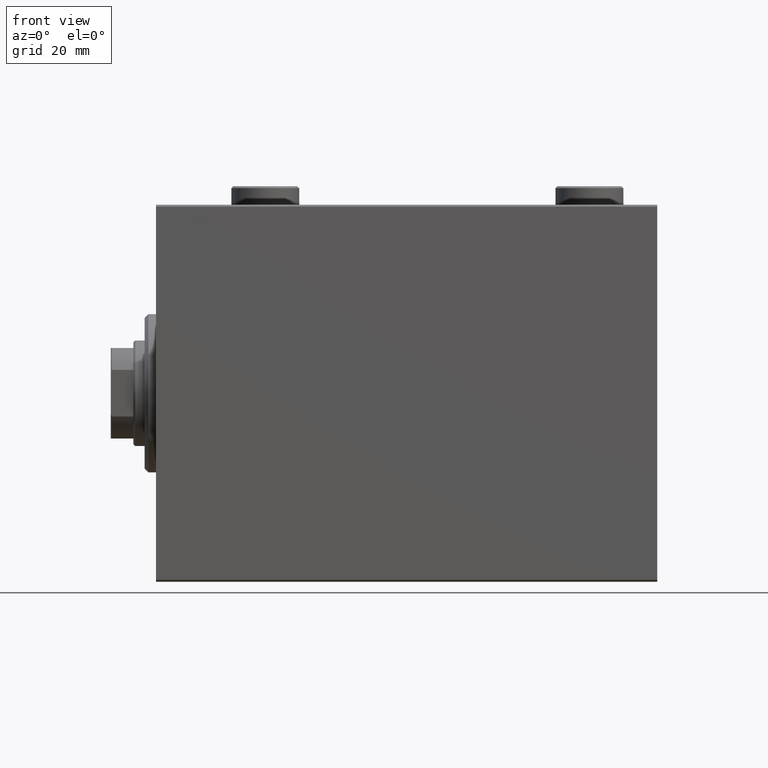
[diagram: clean part render]
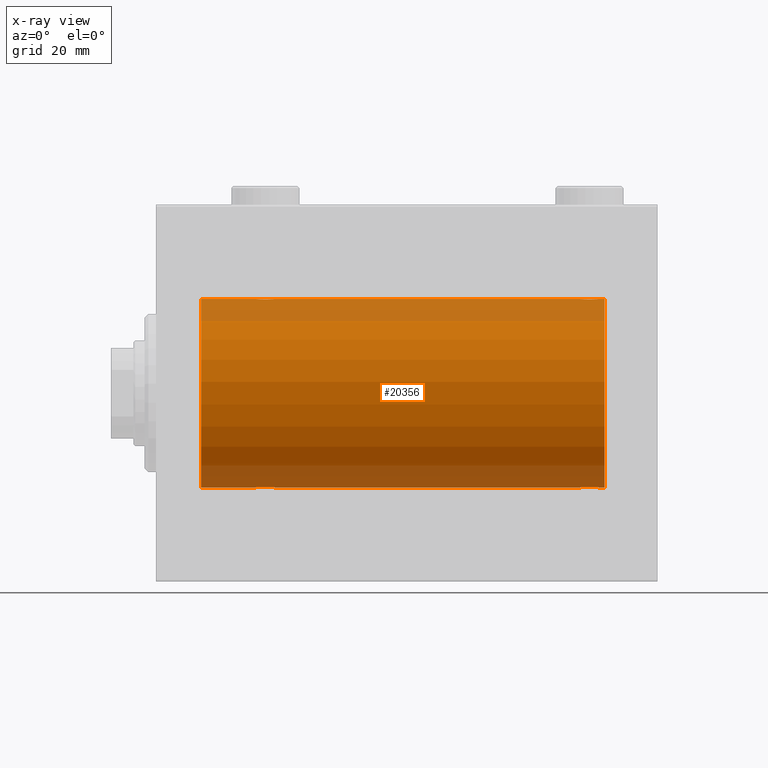
[diagram: x-ray — body ghosted, one internal face saturated and labeled with its STEP entity id]
A machine part, front view, then the same camera in x-ray: the body is ghosted and one INTERNAL B-rep face — a face not visible from any outside direction — is saturated and labeled: STEP entity #20356.
In plain terms, the highlighted cylindrical surface (partial cylindrical patch) has radius 25 mm, axis along (-1, -0, -0).
Its self-contained STEP definition (entity closure, byte-faithful):
#103 = CARTESIAN_POINT ( 'NONE',  ( 117.4841784005765959, -0.3254210271412233957, -24.99840249400844883 ) ) ;
#544 = CARTESIAN_POINT ( 'NONE',  ( 31.49999999999998579, -0.3305063766663716707, 25.00000000000000000 ) ) ;
#751 = CARTESIAN_POINT ( 'NONE',  ( 31.24760251019550950, -1.106703319666878071, -24.97594585958023572 ) ) ;
#789 = CARTESIAN_POINT ( 'NONE',  ( 114.8367641036145557, -2.500125740978209610, -24.87467329022544149 ) ) ;
#1002 = CARTESIAN_POINT ( 'NONE',  ( 115.8078834240580619, -2.371528299825764297, -24.88734287464370709 ) ) ;
#1161 = CARTESIAN_POINT ( 'NONE',  ( 116.8818595414864916, -1.653834020452950915, 24.94550385189584318 ) ) ;
#1399 = CARTESIAN_POINT ( 'NONE',  ( 115.3259657003946330, -2.484007091859779859, 24.87630842367763151 ) ) ;
#1419 = DIRECTION ( 'NONE',  ( -1.000000000000000000, -0.000000000000000000, -0.000000000000000000 ) ) ;
#1562 = CARTESIAN_POINT ( 'NONE',  ( 29.80435660916301543, -2.372734907014179662, 24.88722742718433167 ) ) ;
#1627 = CARTESIAN_POINT ( 'NONE',  ( 112.5000000000000284, -0.1631750940176233677, 25.00000000000000711 ) ) ;
#1875 = ORIENTED_EDGE ( 'NONE', *, *, #18069, .T. ) ;
#2432 = CARTESIAN_POINT ( 'NONE',  ( 119.0000000000000000, 0.000000000000000000, 25.00000000000000000 ) ) ;
#2623 = CARTESIAN_POINT ( 'NONE',  ( 26.50000000000000355, -1.940558383798427991E-23, 25.00000000000000000 ) ) ;
#2659 = DIRECTION ( 'NONE',  ( 0.000000000000000000, 0.000000000000000000, 1.000000000000000000 ) ) ;
#3008 = EDGE_CURVE ( 'NONE', #14849, #11965, #22912, .T. ) ;
#3521 = CARTESIAN_POINT ( 'NONE',  ( 30.25383195424502958, -2.169003991399867104, -24.90589728951138326 ) ) ;
#3798 = CARTESIAN_POINT ( 'NONE',  ( 116.2538319542450580, -2.169003991399883091, -24.90589728951138326 ) ) ;
#3987 = CARTESIAN_POINT ( 'NONE',  ( 119.0000000000000000, 0.000000000000000000, 25.00000000000000000 ) ) ;
#4018 = CARTESIAN_POINT ( 'NONE',  ( 116.5253618224308099, -1.987446652080275156, -24.92104239223420592 ) ) ;
#4204 = CARTESIAN_POINT ( 'NONE',  ( 29.64904390169096970, -2.419770561643905804, -24.88263927071751169 ) ) ;
#4471 = CARTESIAN_POINT ( 'NONE',  ( 115.1670649517806169, -2.499872792855096559, -24.87469871246082320 ) ) ;
#4632 = CARTESIAN_POINT ( 'NONE',  ( 116.2508402392405600, -2.170728182476736379, 24.90574631553725027 ) ) ;
#4689 = CARTESIAN_POINT ( 'NONE',  ( 112.8317235850604163, -1.255214705003200537, -24.96884293994577675 ) ) ;
#5078 = VECTOR ( 'NONE', #10938, 1000.000000000000000 ) ;
#5316 = CARTESIAN_POINT ( 'NONE',  ( 112.5158215994234325, -0.3254210271412262823, 24.99840249400844527 ) ) ;
#5472 = CARTESIAN_POINT ( 'NONE',  ( 26.62784030591392792, -0.8058335233485494076, 24.98746277938382576 ) ) ;
#5523 = EDGE_CURVE ( 'NONE', #15996, #18544, #7297, .T. ) ;
#5541 = CARTESIAN_POINT ( 'NONE',  ( 113.4746381775692328, -1.987446652080276488, 24.92104239223420947 ) ) ;
#5698 = CARTESIAN_POINT ( 'NONE',  ( 28.35095609830903385, -2.419770561643914686, 24.88263927071751169 ) ) ;
#6587 = DIRECTION ( 'NONE',  ( -1.000000000000000000, 0.000000000000000000, 0.000000000000000000 ) ) ;
#6698 = CARTESIAN_POINT ( 'NONE',  ( 11.99999999999999645, 0.000000000000000000, 0.000000000000000000 ) ) ;
#6925 = CARTESIAN_POINT ( 'NONE',  ( 119.0000000000000000, 3.061616997868383043E-15, -25.00000000000000000 ) ) ;
#7212 = CARTESIAN_POINT ( 'NONE',  ( 29.80788342405805835, -2.371528299825741648, -24.88734287464370709 ) ) ;
#7297 = CIRCLE ( 'NONE', #19851, 25.00000000000000000 ) ;
#7451 = CARTESIAN_POINT ( 'NONE',  ( 27.89276154161591137, -2.247417070759893498, -24.89885693081945917 ) ) ;
#7487 = CARTESIAN_POINT ( 'NONE',  ( 119.0000000000000000, 3.061616997868383043E-15, -25.00000000000000000 ) ) ;
#8107 = CARTESIAN_POINT ( 'NONE',  ( 112.5000000000000000, -1.940242839436339586E-23, 25.00000000000000000 ) ) ;
#8434 = CARTESIAN_POINT ( 'NONE',  ( 119.0000000000000000, 3.061616997868383043E-15, -25.00000000000000000 ) ) ;
#8490 = CARTESIAN_POINT ( 'NONE',  ( 27.34616663850662377, -1.881857718844722527, 24.92933960374833902 ) ) ;
#8498 = CARTESIAN_POINT ( 'NONE',  ( 112.5000000000000000, -1.940242839436339586E-23, 25.00000000000000000 ) ) ;
#8715 = CARTESIAN_POINT ( 'NONE',  ( 26.51582159942343253, -0.3254210271412228961, 24.99840249400844527 ) ) ;
#9014 = CARTESIAN_POINT ( 'NONE',  ( 113.1158761721352732, -1.651251241585114826, 24.94567559498347720 ) ) ;
#9395 = CARTESIAN_POINT ( 'NONE',  ( 27.88963203491136156, -2.245863995402906266, 24.89899750494197050 ) ) ;
#9444 = VECTOR ( 'NONE', #17946, 1000.000000000000000 ) ;
#9534 = EDGE_CURVE ( 'NONE', #31065, #9894, #25041, .T. ) ;
#9585 = CARTESIAN_POINT ( 'NONE',  ( 117.4201490922092859, -0.6480119923854253949, -24.99212088949390775 ) ) ;
#9616 = ORIENTED_EDGE ( 'NONE', *, *, #3008, .T. ) ;
#9776 = VERTEX_POINT ( 'NONE', #42539 ) ;
#9823 = EDGE_CURVE ( 'NONE', #18962, #9894, #33281, .T. ) ;
#9894 = VERTEX_POINT ( 'NONE', #27269 ) ;
#9937 = DIRECTION ( 'NONE',  ( -1.000000000000000000, -0.000000000000000000, -0.000000000000000000 ) ) ;
#10092 = CARTESIAN_POINT ( 'NONE',  ( 117.5000000000000142, 3.061616978466108082E-15, -25.00000000000000000 ) ) ;
#10217 = ORIENTED_EDGE ( 'NONE', *, *, #9534, .F. ) ;
#10219 = CARTESIAN_POINT ( 'NONE',  ( 31.50000000000000000, -0.1631750940176180942, -25.00000000000001066 ) ) ;
#10317 = EDGE_CURVE ( 'NONE', #41528, #9776, #22139, .T. ) ;
#10380 = VERTEX_POINT ( 'NONE', #7487 ) ;
#10676 = CARTESIAN_POINT ( 'NONE',  ( 28.67403429960540606, -2.484007091859761207, -24.87630842367763506 ) ) ;
#10781 = CARTESIAN_POINT ( 'NONE',  ( 119.0000000000000000, 3.061616997868383043E-15, -25.00000000000000000 ) ) ;
#10905 = CARTESIAN_POINT ( 'NONE',  ( 30.11036796508864910, -2.245863995402895164, -24.89899750494197406 ) ) ;
#10938 = DIRECTION ( 'NONE',  ( -1.000000000000000000, -0.000000000000000000, -0.000000000000000000 ) ) ;
#11354 = CARTESIAN_POINT ( 'NONE',  ( 26.83172358506043054, -1.255214705003178555, -24.96884293994578030 ) ) ;
#11559 = CARTESIAN_POINT ( 'NONE',  ( 117.5000000000000142, 3.101442856047762335E-15, 25.00000000000000000 ) ) ;
#11894 = DIRECTION ( 'NONE',  ( -1.000000000000000000, -0.000000000000000000, -0.000000000000000000 ) ) ;
#11965 = VERTEX_POINT ( 'NONE', #36256 ) ;
#12172 = CARTESIAN_POINT ( 'NONE',  ( 31.24606379094066355, -1.109818057797419710, 24.97580694515541921 ) ) ;
#12241 = CARTESIAN_POINT ( 'NONE',  ( 113.3461666385066735, -1.881857718844731187, 24.92933960374834257 ) ) ;
#12563 = EDGE_CURVE ( 'NONE', #32793, #21113, #43044, .T. ) ;
#13233 = CARTESIAN_POINT ( 'NONE',  ( 31.50000000000000000, 3.061616978460191625E-15, -25.00000000000000000 ) ) ;
#13881 = VECTOR ( 'NONE', #1419, 1000.000000000000000 ) ;
#13937 = ORIENTED_EDGE ( 'NONE', *, *, #10317, .T. ) ;
#14135 = CARTESIAN_POINT ( 'NONE',  ( 27.01461966282905180, -1.528152964861308138, -24.95362559291378801 ) ) ;
#14171 = CARTESIAN_POINT ( 'NONE',  ( 114.6740342996053670, -2.484007091859777638, -24.87630842367762796 ) ) ;
#14633 = CARTESIAN_POINT ( 'NONE',  ( 113.1181404585135652, -1.653834020452952469, -24.94550385189584318 ) ) ;
#14687 = LINE ( 'NONE', #8434, #24721 ) ;
#14710 = LINE ( 'NONE', #10781, #9444 ) ;
#14849 = VERTEX_POINT ( 'NONE', #2623 ) ;
#15080 = CARTESIAN_POINT ( 'NONE',  ( 113.7491597607594542, -2.170728182476735491, -24.90574631553725027 ) ) ;
#15243 = CARTESIAN_POINT ( 'NONE',  ( 112.6278403059138924, -0.8058335233485547366, 24.98746277938382221 ) ) ;
#15410 = CARTESIAN_POINT ( 'NONE',  ( 30.65121133559112820, -1.884161199660621344, 24.92916496727982434 ) ) ;
#15480 = CARTESIAN_POINT ( 'NONE',  ( 112.5798509077907141, -0.6480119923854293917, 24.99212088949391131 ) ) ;
#15635 = CARTESIAN_POINT ( 'NONE',  ( 30.25084023924055288, -2.170728182476724832, 24.90574631553725027 ) ) ;
#15672 = ORIENTED_EDGE ( 'NONE', *, *, #5523, .T. ) ;
#15703 = CARTESIAN_POINT ( 'NONE',  ( 115.8043566091630368, -2.372734907014189876, 24.88722742718433523 ) ) ;
#15723 = LINE ( 'NONE', #43708, #13881 ) ;
#15996 = VERTEX_POINT ( 'NONE', #29323 ) ;
#16093 = CARTESIAN_POINT ( 'NONE',  ( 26.50000000000000711, -0.1631750940176210085, 25.00000000000000355 ) ) ;
#16743 = ORIENTED_EDGE ( 'NONE', *, *, #27551, .F. ) ;
#17079 = DIRECTION ( 'NONE',  ( -1.000000000000000000, 0.000000000000000000, 0.000000000000000000 ) ) ;
#17610 = CARTESIAN_POINT ( 'NONE',  ( 26.75393620905933290, -1.109818057797416158, -24.97580694515542277 ) ) ;
#17835 = CARTESIAN_POINT ( 'NONE',  ( 26.50000000000000355, -4.113702575029848227E-15, -25.00000000000000000 ) ) ;
#17873 = CARTESIAN_POINT ( 'NONE',  ( 113.0146196628290340, -1.528152964861329899, -24.95362559291378091 ) ) ;
#17946 = DIRECTION ( 'NONE',  ( -1.000000000000000000, -0.000000000000000000, -0.000000000000000000 ) ) ;
#18069 = EDGE_CURVE ( 'NONE', #21113, #15996, #24491, .T. ) ;
#18544 = VERTEX_POINT ( 'NONE', #26804 ) ;
#18779 = CARTESIAN_POINT ( 'NONE',  ( 116.6538333614933975, -1.881857718844729188, -24.92933960374833546 ) ) ;
#18962 = VERTEX_POINT ( 'NONE', #8498 ) ;
#19182 = CARTESIAN_POINT ( 'NONE',  ( 112.8298870971907206, -1.252049606094352230, 24.96900299967626324 ) ) ;
#19338 = CARTESIAN_POINT ( 'NONE',  ( 27.74616804575497042, -2.169003991399875098, 24.90589728951138326 ) ) ;
#19401 = CARTESIAN_POINT ( 'NONE',  ( 113.8896320349113864, -2.245863995402917812, 24.89899750494197050 ) ) ;
#19564 = CARTESIAN_POINT ( 'NONE',  ( 26.82988709719076326, -1.252049606094339795, 24.96900299967627745 ) ) ;
#19851 = AXIS2_PLACEMENT_3D ( 'NONE', #6698, #17079, #27506 ) ;
#20021 = CARTESIAN_POINT ( 'NONE',  ( 30.10723845838410284, -2.247417070759901936, 24.89885693081946272 ) ) ;
#20356 = ADVANCED_FACE ( 'NONE', ( #34991 ), #27390, .F. ) ;
#20851 = CARTESIAN_POINT ( 'NONE',  ( 27.34878866440888245, -1.884161199660614017, -24.92916496727982434 ) ) ;
#20895 = CARTESIAN_POINT ( 'NONE',  ( 119.0000000000000000, 0.000000000000000000, 0.000000000000000000 ) ) ;
#21113 = VERTEX_POINT ( 'NONE', #42165 ) ;
#21119 = CARTESIAN_POINT ( 'NONE',  ( 117.5000000000000142, 3.061616978466108082E-15, -25.00000000000000000 ) ) ;
#21318 = CARTESIAN_POINT ( 'NONE',  ( 28.83676410361457343, -2.500125740978191846, -24.87467329022545925 ) ) ;
#21584 = CARTESIAN_POINT ( 'NONE',  ( 116.9874981583439535, -1.525407911884367307, -24.95379469572361586 ) ) ;
#21769 = CARTESIAN_POINT ( 'NONE',  ( 27.47743225659810307, -1.989585286700244149, -24.92087098724765681 ) ) ;
#22139 = B_SPLINE_CURVE_WITH_KNOTS ( 'NONE', 3,
 ( #21119, #31774, #103, #9585, #23676, #35453, #32674, #21584, #25499, #18779, #4018, #3798, #28984, #1002, #42842, #42601, #4471, #789, #14171, #36355, #39584, #25731, #15080, #28300, #25273, #14633, #17873, #4689, #28768, #25050, #43058, #36134 ),
 .UNSPECIFIED., .F., .F.,
 ( 4, 2, 2, 2, 2, 2, 2, 2, 2, 2, 2, 2, 2, 2, 2, 4 ),
 ( 0.007821024441662317167, 0.008309723826317923570, 0.008798423210973531708, 0.009287122595629138111, 0.009775821980284744514, 0.01026452136494035092, 0.01075322074959595905, 0.01124192013425156546, 0.01173061951890717186, 0.01221931890356278000, 0.01270801828821838640, 0.01319671767287399280, 0.01368541705752960094, 0.01417411644218520735, 0.01466281582684081375, 0.01564021459615204390 ),
 .UNSPECIFIED. ) ;
#22743 = AXIS2_PLACEMENT_3D ( 'NONE', #44496, #6587, #2659 ) ;
#22893 = CARTESIAN_POINT ( 'NONE',  ( 112.7523974898045083, -1.106703319666893393, 24.97594585958023217 ) ) ;
#22912 = B_SPLINE_CURVE_WITH_KNOTS ( 'NONE', 3,
 ( #40142, #16093, #8715, #36919, #5472, #40603, #19564, #37357, #30227, #8490, #26519, #19338, #9395, #44524, #5698, #40368, #44307, #23492, #36679, #33449, #1562, #20021, #15635, #37586, #15410, #29545, #43623, #29766, #12172, #26287, #544, #39349 ),
 .UNSPECIFIED., .F., .F.,
 ( 4, 2, 2, 2, 2, 2, 2, 2, 2, 2, 2, 2, 2, 2, 2, 4 ),
 ( 0.007821024441662254717, 0.008309723826317859385, 0.008798423210973464054, 0.009287122595629070457, 0.009775821980284676860, 0.01026452136494028153, 0.01075322074959588620, 0.01124192013425149260, 0.01173061951890709900, 0.01221931890356270367, 0.01270801828821830834, 0.01319671767287391301, 0.01368541705752951768, 0.01417411644218512408, 0.01466281582684072701, 0.01564021459615193982 ),
 .UNSPECIFIED. ) ;
#23112 = CARTESIAN_POINT ( 'NONE',  ( 115.1632358963854585, -2.500125740978211386, 24.87467329022544860 ) ) ;
#23206 = ORIENTED_EDGE ( 'NONE', *, *, #34665, .T. ) ;
#23492 = CARTESIAN_POINT ( 'NONE',  ( 29.16323589638543368, -2.500125740978201616, 24.87467329022545215 ) ) ;
#23676 = CARTESIAN_POINT ( 'NONE',  ( 117.3721596940861076, -0.8058335233485520721, -24.98746277938383287 ) ) ;
#24156 = ORIENTED_EDGE ( 'NONE', *, *, #25785, .T. ) ;
#24491 = LINE ( 'NONE', #6925, #43102 ) ;
#24721 = VECTOR ( 'NONE', #11894, 1000.000000000000000 ) ;
#24772 = CARTESIAN_POINT ( 'NONE',  ( 31.37215969408607563, -0.8058335233485418581, -24.98746277938382931 ) ) ;
#25041 = LINE ( 'NONE', #28977, #5078 ) ;
#25050 = CARTESIAN_POINT ( 'NONE',  ( 112.5665064476025350, -0.6588655613946048373, -24.99312727339970053 ) ) ;
#25273 = CARTESIAN_POINT ( 'NONE',  ( 113.3487886644089286, -1.884161199660632224, -24.92916496727982789 ) ) ;
#25499 = CARTESIAN_POINT ( 'NONE',  ( 116.8841238278646983, -1.651251241585112384, -24.94567559498348430 ) ) ;
#25731 = CARTESIAN_POINT ( 'NONE',  ( 113.8927615416159256, -2.247417070759910818, -24.89885693081946272 ) ) ;
#25785 = EDGE_CURVE ( 'NONE', #9776, #32793, #14687, .T. ) ;
#26287 = CARTESIAN_POINT ( 'NONE',  ( 31.43349355239747567, -0.6588655613945897382, 24.99312727339969697 ) ) ;
#26352 = CARTESIAN_POINT ( 'NONE',  ( 117.2460637909406813, -1.109818057797415936, 24.97580694515541921 ) ) ;
#26519 = CARTESIAN_POINT ( 'NONE',  ( 27.47463817756919013, -1.987446652080266496, 24.92104239223420592 ) ) ;
#26804 = CARTESIAN_POINT ( 'NONE',  ( 11.99999999999999645, 0.000000000000000000, 25.00000000000000000 ) ) ;
#26911 = ORIENTED_EDGE ( 'NONE', *, *, #34875, .F. ) ;
#27269 = CARTESIAN_POINT ( 'NONE',  ( 117.5000000000000142, 3.101442856047762335E-15, 25.00000000000000000 ) ) ;
#27390 = CYLINDRICAL_SURFACE ( 'NONE', #33576, 25.00000000000000000 ) ;
#27506 = DIRECTION ( 'NONE',  ( 0.000000000000000000, 0.000000000000000000, 1.000000000000000000 ) ) ;
#27551 = EDGE_CURVE ( 'NONE', #18962, #11965, #35869, .T. ) ;
#28035 = CARTESIAN_POINT ( 'NONE',  ( 30.65383336149337978, -1.881857718844712091, -24.92933960374833546 ) ) ;
#28260 = CARTESIAN_POINT ( 'NONE',  ( 30.52536182243081342, -1.987446652080259391, -24.92104239223420592 ) ) ;
#28300 = CARTESIAN_POINT ( 'NONE',  ( 113.4774322565981635, -1.989585286700261468, -24.92087098724766747 ) ) ;
#28493 = CARTESIAN_POINT ( 'NONE',  ( 30.98749815834398902, -1.525407911884361312, -24.95379469572362652 ) ) ;
#28727 = CARTESIAN_POINT ( 'NONE',  ( 29.16706495178060621, -2.499872792855077464, -24.87469871246082320 ) ) ;
#28768 = CARTESIAN_POINT ( 'NONE',  ( 112.7539362090593187, -1.109818057797434143, -24.97580694515541921 ) ) ;
#28977 = CARTESIAN_POINT ( 'NONE',  ( 119.0000000000000000, 0.000000000000000000, 25.00000000000000000 ) ) ;
#28984 = CARTESIAN_POINT ( 'NONE',  ( 116.1103679650886704, -2.245863995402916924, -24.89899750494197050 ) ) ;
#29057 = ORIENTED_EDGE ( 'NONE', *, *, #12563, .T. ) ;
#29147 = CARTESIAN_POINT ( 'NONE',  ( 114.1921165759419665, -2.371528299825766073, 24.88734287464371775 ) ) ;
#29323 = CARTESIAN_POINT ( 'NONE',  ( 11.99999999999999645, 3.061616997868383043E-15, -25.00000000000000000 ) ) ;
#29375 = CARTESIAN_POINT ( 'NONE',  ( 117.1682764149395410, -1.255214705003183662, 24.96884293994577320 ) ) ;
#29545 = CARTESIAN_POINT ( 'NONE',  ( 30.88185954148645962, -1.653834020452942255, 24.94550385189584674 ) ) ;
#29610 = CARTESIAN_POINT ( 'NONE',  ( 116.1072384583840886, -2.247417070759912594, 24.89885693081946627 ) ) ;
#29734 = CARTESIAN_POINT ( 'NONE',  ( 31.50000000000000000, 3.061616978460191625E-15, -25.00000000000000000 ) ) ;
#29766 = CARTESIAN_POINT ( 'NONE',  ( 31.16827641493956591, -1.255214705003186770, 24.96884293994577320 ) ) ;
#30227 = CARTESIAN_POINT ( 'NONE',  ( 27.11587617213529100, -1.651251241585107055, 24.94567559498349141 ) ) ;
#31065 = VERTEX_POINT ( 'NONE', #2432 ) ;
#31774 = CARTESIAN_POINT ( 'NONE',  ( 117.5000000000000142, -0.1631750940176202036, -25.00000000000000355 ) ) ;
#32614 = CARTESIAN_POINT ( 'NONE',  ( 113.0125018416560039, -1.525407911884381074, 24.95379469572361586 ) ) ;
#32674 = CARTESIAN_POINT ( 'NONE',  ( 117.1701129028092936, -1.252049606094338241, -24.96900299967627745 ) ) ;
#32793 = VERTEX_POINT ( 'NONE', #29734 ) ;
#33060 = CARTESIAN_POINT ( 'NONE',  ( 114.6705231988572962, -2.483544361357286956, 24.87635491893501438 ) ) ;
#33281 = B_SPLINE_CURVE_WITH_KNOTS ( 'NONE', 3,
 ( #8107, #1627, #5316, #15480, #15243, #22893, #19182, #32614, #9014, #12241, #5541, #44141, #19401, #29147, #43689, #33060, #36294, #23112, #1399, #43455, #15703, #29610, #4632, #37200, #43915, #1161, #33519, #29375, #26352, #40437, #43224, #11559 ),
 .UNSPECIFIED., .F., .F.,
 ( 4, 2, 2, 2, 2, 2, 2, 2, 2, 2, 2, 2, 2, 2, 2, 4 ),
 ( 0.007821024441662331045, 0.008309723826317942652, 0.008798423210973554259, 0.009287122595629165867, 0.009775821980284777474, 0.01026452136494038908, 0.01075322074959600069, 0.01124192013425161230, 0.01173061951890722390, 0.01221931890356283551, 0.01270801828821844712, 0.01319671767287405872, 0.01368541705752967033, 0.01417411644218528194, 0.01466281582684089355, 0.01564021459615209941 ),
 .UNSPECIFIED. ) ;
#33449 = CARTESIAN_POINT ( 'NONE',  ( 29.64560666148632606, -2.420689345803765935, 24.88254961038873958 ) ) ;
#33519 = CARTESIAN_POINT ( 'NONE',  ( 116.9853803371709517, -1.528152964861316132, 24.95362559291378801 ) ) ;
#33576 = AXIS2_PLACEMENT_3D ( 'NONE', #20895, #38215, #34093 ) ;
#34093 = DIRECTION ( 'NONE',  ( 0.000000000000000000, 0.000000000000000000, 1.000000000000000000 ) ) ;
#34111 = EDGE_CURVE ( 'NONE', #14849, #18544, #15723, .T. ) ;
#34329 = DIRECTION ( 'NONE',  ( -1.000000000000000000, -0.000000000000000000, -0.000000000000000000 ) ) ;
#34665 = EDGE_CURVE ( 'NONE', #10380, #41528, #14710, .T. ) ;
#34875 = EDGE_CURVE ( 'NONE', #10380, #31065, #42660, .T. ) ;
#34991 = FACE_OUTER_BOUND ( 'NONE', #39407, .T. ) ;
#35172 = CARTESIAN_POINT ( 'NONE',  ( 26.50000000000000000, -0.3305063766663763336, -25.00000000000000355 ) ) ;
#35415 = CARTESIAN_POINT ( 'NONE',  ( 28.35439333851368460, -2.420689345803756165, -24.88254961038873958 ) ) ;
#35453 = CARTESIAN_POINT ( 'NONE',  ( 117.2476025101955628, -1.106703319666890728, -24.97594585958024282 ) ) ;
#35637 = CARTESIAN_POINT ( 'NONE',  ( 27.74915976075945068, -2.170728182476717283, -24.90574631553725027 ) ) ;
#35869 = LINE ( 'NONE', #3987, #37283 ) ;
#36134 = CARTESIAN_POINT ( 'NONE',  ( 112.5000000000000000, -1.280060314878013390E-14, -25.00000000000000000 ) ) ;
#36256 = CARTESIAN_POINT ( 'NONE',  ( 31.50000000000000000, -2.684100552846272733E-15, 25.00000000000000000 ) ) ;
#36294 = CARTESIAN_POINT ( 'NONE',  ( 114.8329350482194116, -2.499872792855098780, 24.87469871246082675 ) ) ;
#36355 = CARTESIAN_POINT ( 'NONE',  ( 114.3543933385136881, -2.420689345803770820, -24.88254961038873248 ) ) ;
#36679 = CARTESIAN_POINT ( 'NONE',  ( 29.32596570039460104, -2.484007091859770089, 24.87630842367763506 ) ) ;
#36919 = CARTESIAN_POINT ( 'NONE',  ( 26.57985090779070347, -0.6480119923854233965, 24.99212088949390775 ) ) ;
#37200 = CARTESIAN_POINT ( 'NONE',  ( 116.5225677434019218, -1.989585286700262801, 24.92087098724766747 ) ) ;
#37283 = VECTOR ( 'NONE', #34329, 1000.000000000000000 ) ;
#37357 = CARTESIAN_POINT ( 'NONE',  ( 27.01250184165602164, -1.525407911884368417, 24.95379469572363007 ) ) ;
#37586 = CARTESIAN_POINT ( 'NONE',  ( 30.52256774340189693, -1.989585286700248590, 24.92087098724766392 ) ) ;
#38215 = DIRECTION ( 'NONE',  ( -1.000000000000000000, -0.000000000000000000, -0.000000000000000000 ) ) ;
#38296 = ORIENTED_EDGE ( 'NONE', *, *, #34111, .F. ) ;
#38628 = CARTESIAN_POINT ( 'NONE',  ( 28.19564339083698457, -2.372734907014171224, -24.88722742718433523 ) ) ;
#38855 = CARTESIAN_POINT ( 'NONE',  ( 31.17011290280925451, -1.252049606094333578, -24.96900299967627745 ) ) ;
#39103 = CARTESIAN_POINT ( 'NONE',  ( 31.48417840057656747, -0.3254210271412200650, -24.99840249400844527 ) ) ;
#39323 = CARTESIAN_POINT ( 'NONE',  ( 27.11814045851354038, -1.653834020452936038, -24.94550385189584674 ) ) ;
#39349 = CARTESIAN_POINT ( 'NONE',  ( 31.50000000000000000, -2.684100552846272733E-15, 25.00000000000000000 ) ) ;
#39407 = EDGE_LOOP ( 'NONE', ( #26911, #23206, #13937, #24156, #29057, #1875, #15672, #38296, #9616, #16743, #40640, #10217 ) ) ;
#39549 = CARTESIAN_POINT ( 'NONE',  ( 31.42014909220930363, -0.6480119923854200659, -24.99212088949392196 ) ) ;
#39584 = CARTESIAN_POINT ( 'NONE',  ( 114.1956433908369775, -2.372734907014188099, -24.88722742718433167 ) ) ;
#40142 = CARTESIAN_POINT ( 'NONE',  ( 26.50000000000000355, -1.940558383798427991E-23, 25.00000000000000000 ) ) ;
#40368 = CARTESIAN_POINT ( 'NONE',  ( 28.67052319885731038, -2.483544361357275854, 24.87635491893501793 ) ) ;
#40437 = CARTESIAN_POINT ( 'NONE',  ( 117.4334935523975076, -0.6588655613945838541, 24.99312727339970408 ) ) ;
#40603 = CARTESIAN_POINT ( 'NONE',  ( 26.75239748980448695, -1.106703319666887175, 24.97594585958023572 ) ) ;
#40640 = ORIENTED_EDGE ( 'NONE', *, *, #9823, .T. ) ;
#41528 = VERTEX_POINT ( 'NONE', #10092 ) ;
#42165 = CARTESIAN_POINT ( 'NONE',  ( 26.50000000000000355, -4.113702575029848227E-15, -25.00000000000000000 ) ) ;
#42339 = CARTESIAN_POINT ( 'NONE',  ( 30.88412382786470900, -1.651251241585097063, -24.94567559498348075 ) ) ;
#42539 = CARTESIAN_POINT ( 'NONE',  ( 112.5000000000000000, -1.280060314878013390E-14, -25.00000000000000000 ) ) ;
#42561 = CARTESIAN_POINT ( 'NONE',  ( 29.32947680114268252, -2.483544361357266084, -24.87635491893501083 ) ) ;
#42601 = CARTESIAN_POINT ( 'NONE',  ( 115.3294768011426896, -2.483544361357282959, -24.87635491893501793 ) ) ;
#42660 = CIRCLE ( 'NONE', #22743, 25.00000000000000000 ) ;
#42803 = CARTESIAN_POINT ( 'NONE',  ( 26.56650644760252789, -0.6588655613945878509, -24.99312727339970763 ) ) ;
#42842 = CARTESIAN_POINT ( 'NONE',  ( 115.6490439016909590, -2.419770561643919127, -24.88263927071750814 ) ) ;
#43044 = B_SPLINE_CURVE_WITH_KNOTS ( 'NONE', 3,
 ( #13233, #10219, #39103, #39549, #24772, #751, #38855, #28493, #42339, #28035, #28260, #3521, #10905, #7212, #4204, #42561, #28727, #21318, #10676, #35415, #38628, #7451, #35637, #21769, #20851, #39323, #14135, #11354, #17610, #42803, #35172, #17835 ),
 .UNSPECIFIED., .F., .F.,
 ( 4, 2, 2, 2, 2, 2, 2, 2, 2, 2, 2, 2, 2, 2, 2, 4 ),
 ( 0.007821024441662299820, 0.008309723826317907958, 0.008798423210973517830, 0.009287122595629122498, 0.009775821980284727167, 0.01026452136494033184, 0.01075322074959593650, 0.01124192013425154291, 0.01173061951890714757, 0.01221931890356275051, 0.01270801828821835691, 0.01319671767287396158, 0.01368541705752956625, 0.01417411644218517092, 0.01466281582684077732, 0.01564021459615199186 ),
 .UNSPECIFIED. ) ;
#43058 = CARTESIAN_POINT ( 'NONE',  ( 112.5000000000000000, -0.3305063766663864921, -25.00000000000000355 ) ) ;
#43102 = VECTOR ( 'NONE', #9937, 1000.000000000000000 ) ;
#43224 = CARTESIAN_POINT ( 'NONE',  ( 117.5000000000000142, -0.3305063766663766667, 25.00000000000000355 ) ) ;
#43455 = CARTESIAN_POINT ( 'NONE',  ( 115.6456066614863403, -2.420689345803773040, 24.88254961038873603 ) ) ;
#43623 = CARTESIAN_POINT ( 'NONE',  ( 30.98538033717095175, -1.528152964861317464, 24.95362559291379156 ) ) ;
#43689 = CARTESIAN_POINT ( 'NONE',  ( 114.3509560983090410, -2.419770561643924012, 24.88263927071751525 ) ) ;
#43708 = CARTESIAN_POINT ( 'NONE',  ( 119.0000000000000000, 0.000000000000000000, 25.00000000000000000 ) ) ;
#43915 = CARTESIAN_POINT ( 'NONE',  ( 116.6512113355911566, -1.884161199660632668, 24.92916496727982789 ) ) ;
#44141 = CARTESIAN_POINT ( 'NONE',  ( 113.7461680457549704, -2.169003991399884423, 24.90589728951138682 ) ) ;
#44307 = CARTESIAN_POINT ( 'NONE',  ( 28.83293504821939379, -2.499872792855087678, 24.87469871246082320 ) ) ;
#44496 = CARTESIAN_POINT ( 'NONE',  ( 119.0000000000000000, 0.000000000000000000, 0.000000000000000000 ) ) ;
#44524 = CARTESIAN_POINT ( 'NONE',  ( 28.19211657594194875, -2.371528299825753638, 24.88734287464371420 ) ) ;